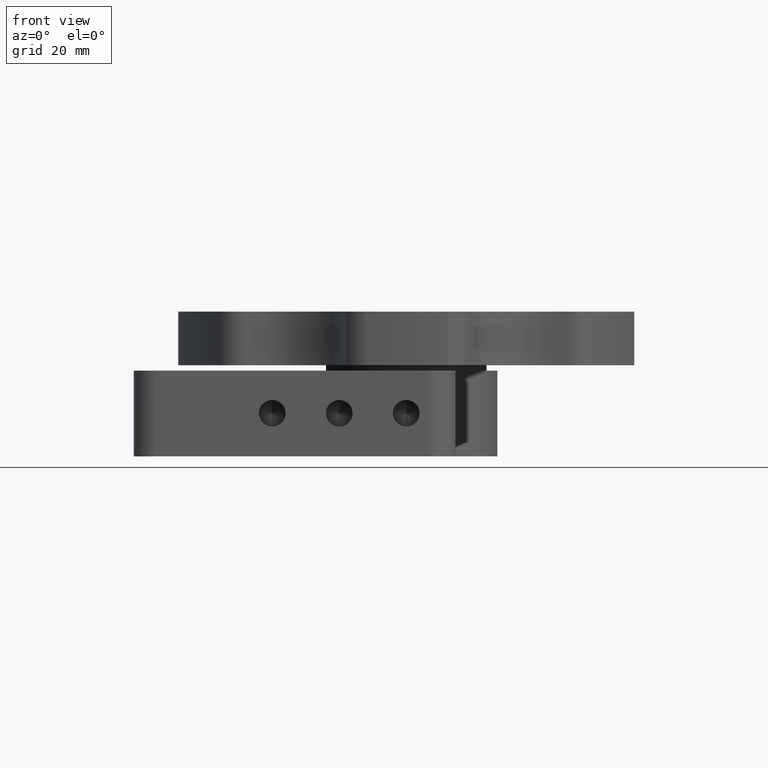
[diagram: clean part render]
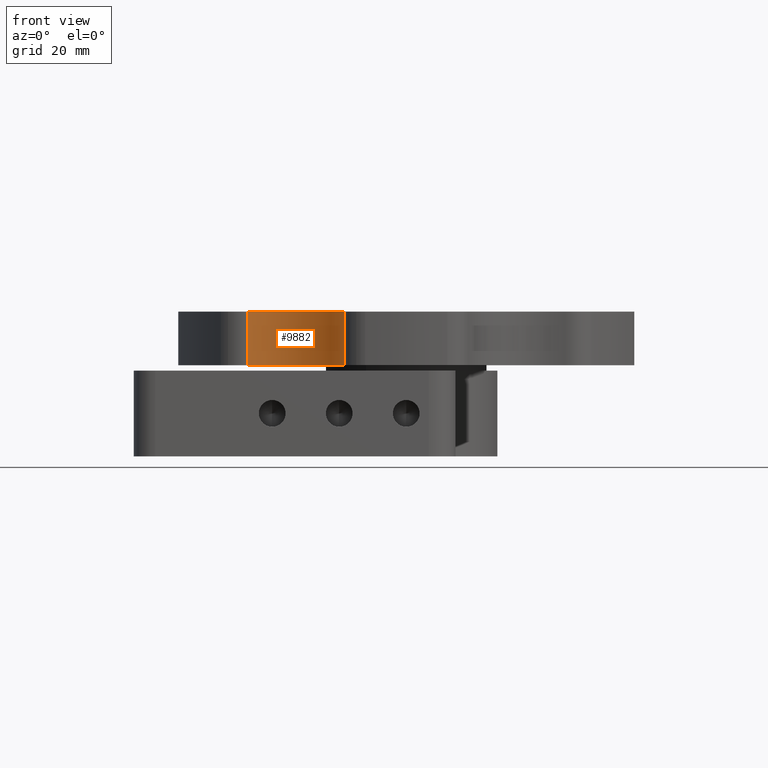
[diagram: same view with one face highlighted and labeled with its STEP entity id]
A machine part, front view. The second image highlights one B-rep face of the part: STEP entity #9882.
In plain terms, the highlighted cylindrical surface (partial cylindrical patch) has radius 15 mm, axis along (0, 0, -1).
Its self-contained STEP definition (entity closure, byte-faithful):
#754 = VERTEX_POINT ( 'NONE', #1560 ) ;
#846 = DIRECTION ( 'NONE',  ( 2.057959674044430800E-031, 1.224606353822377500E-016, -1.000000000000000000 ) ) ;
#974 = DIRECTION ( 'NONE',  ( 2.057959674044430800E-031, 1.224606353822377500E-016, -1.000000000000000000 ) ) ;
#1470 = AXIS2_PLACEMENT_3D ( 'NONE', #3973, #3908, #11359 ) ;
#1492 = CIRCLE ( 'NONE', #12302, 15.00000000000003000 ) ;
#1560 = CARTESIAN_POINT ( 'NONE',  ( -11.60358980220434900, -40.82103261435445800, 1.000000000000003800 ) ) ;
#1621 = EDGE_CURVE ( 'NONE', #5398, #2234, #14698, .T. ) ;
#2041 = CARTESIAN_POINT ( 'NONE',  ( -11.60358980220434900, -40.82103261435446500, 11.00000000000000400 ) ) ;
#2234 = VERTEX_POINT ( 'NONE', #3428 ) ;
#2531 = ORIENTED_EDGE ( 'NONE', *, *, #8162, .F. ) ;
#2948 = ORIENTED_EDGE ( 'NONE', *, *, #15018, .F. ) ;
#3273 = CARTESIAN_POINT ( 'NONE',  ( -25.99999999999983300, -45.03332099679111900, 1.000000000000003300 ) ) ;
#3428 = CARTESIAN_POINT ( 'NONE',  ( -29.55025635164156100, -30.45951985098062300, 1.000000000000005100 ) ) ;
#3908 = DIRECTION ( 'NONE',  ( 2.057959674044430800E-031, 1.224606353822377500E-016, -1.000000000000000000 ) ) ;
#3973 = CARTESIAN_POINT ( 'NONE',  ( -25.99999999999983300, -45.03332099679111900, 11.00000000000000400 ) ) ;
#4577 = CARTESIAN_POINT ( 'NONE',  ( -11.60358980220434900, -40.82103261435446500, 11.00000000000000400 ) ) ;
#4649 = CARTESIAN_POINT ( 'NONE',  ( -29.55025635164156100, -30.45951985098062700, 11.00000000000000400 ) ) ;
#4836 = ORIENTED_EDGE ( 'NONE', *, *, #15331, .T. ) ;
#4979 = DIRECTION ( 'NONE',  ( 2.057959674044430800E-031, 1.224606353822377500E-016, -1.000000000000000000 ) ) ;
#5274 = CARTESIAN_POINT ( 'NONE',  ( -29.55025635164156100, -30.45951985098062700, 11.00000000000000400 ) ) ;
#5398 = VERTEX_POINT ( 'NONE', #5274 ) ;
#5812 = CIRCLE ( 'NONE', #9651, 15.00000000000003000 ) ;
#6091 = ORIENTED_EDGE ( 'NONE', *, *, #1621, .T. ) ;
#7230 = DIRECTION ( 'NONE',  ( -0.4999999999999950000, -0.8660254037844415900, -1.156482317317869000E-016 ) ) ;
#7278 = CARTESIAN_POINT ( 'NONE',  ( -25.99999999999983300, -45.03332099679111900, 11.00000000000000400 ) ) ;
#7904 = CYLINDRICAL_SURFACE ( 'NONE', #1470, 15.00000000000003000 ) ;
#8162 = EDGE_CURVE ( 'NONE', #13697, #754, #13801, .T. ) ;
#9090 = VECTOR ( 'NONE', #846, 1000.000000000000000 ) ;
#9317 = EDGE_LOOP ( 'NONE', ( #4836, #2531, #2948, #6091 ) ) ;
#9651 = AXIS2_PLACEMENT_3D ( 'NONE', #3273, #14192, #12966 ) ;
#9882 = ADVANCED_FACE ( 'NONE', ( #13368 ), #7904, .F. ) ;
#11359 = DIRECTION ( 'NONE',  ( -0.4999999999999950000, -0.8660254037844415900, -1.156482317317869000E-016 ) ) ;
#12302 = AXIS2_PLACEMENT_3D ( 'NONE', #7278, #4979, #7230 ) ;
#12966 = DIRECTION ( 'NONE',  ( -0.4999999999999950000, -0.8660254037844415900, -1.011922027653135400E-016 ) ) ;
#13368 = FACE_OUTER_BOUND ( 'NONE', #9317, .T. ) ;
#13697 = VERTEX_POINT ( 'NONE', #2041 ) ;
#13801 = LINE ( 'NONE', #4577, #9090 ) ;
#14192 = DIRECTION ( 'NONE',  ( 2.057959674044430800E-031, 1.224606353822377500E-016, -1.000000000000000000 ) ) ;
#14698 = LINE ( 'NONE', #4649, #15638 ) ;
#15018 = EDGE_CURVE ( 'NONE', #5398, #13697, #1492, .T. ) ;
#15331 = EDGE_CURVE ( 'NONE', #2234, #754, #5812, .T. ) ;
#15638 = VECTOR ( 'NONE', #974, 1000.000000000000000 ) ;